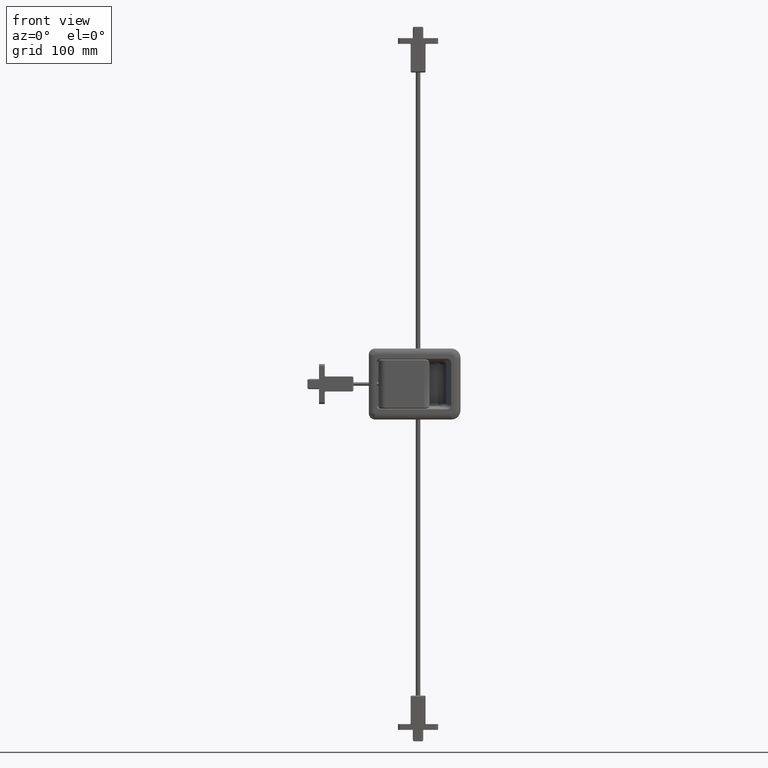
[diagram: clean part render]
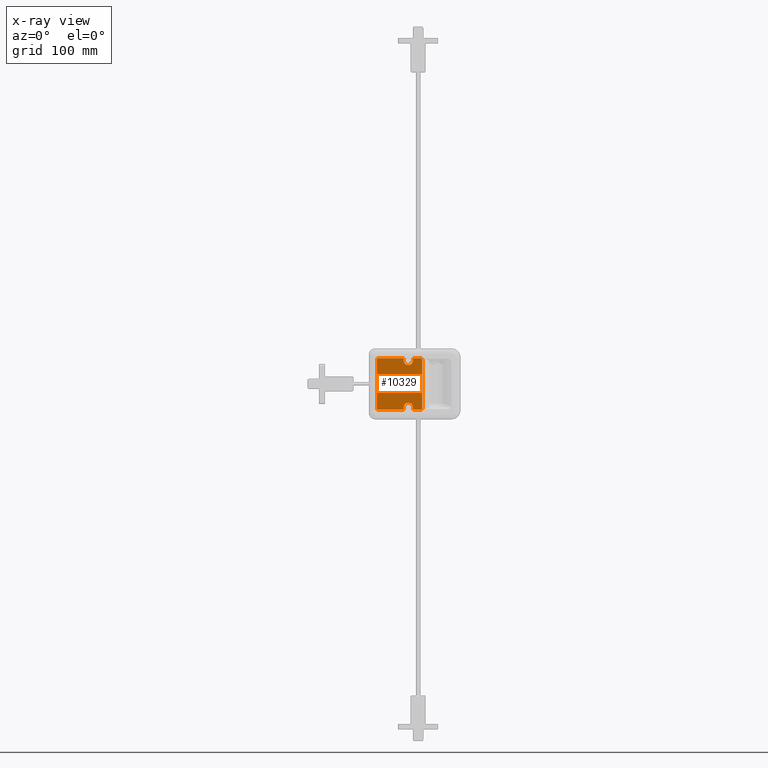
[diagram: x-ray — body ghosted, one internal face saturated and labeled with its STEP entity id]
A machine part, front view, then the same camera in x-ray: the body is ghosted and one INTERNAL B-rep face — a face not visible from any outside direction — is saturated and labeled: STEP entity #10329.
In plain terms, the highlighted face is a freeform B-spline surface patch.
Its self-contained STEP definition (entity closure, byte-faithful):
#9283=CARTESIAN_POINT('',(16.500000000000000,13.750000000000000,20.500000000000000));
#9284=VERTEX_POINT('',#9283);
#9285=CARTESIAN_POINT('',(16.500000000000000,13.750000000000000,22.449999999999999));
#9286=VERTEX_POINT('',#9285);
#9287=CARTESIAN_POINT('',(16.500000000000000,13.750000000000000,20.500000000000000));
#9288=CARTESIAN_POINT('',(16.500000000000000,13.750000000000000,22.449999999999999));
#9289=QUASI_UNIFORM_CURVE('',1,(#9287,#9288),.UNSPECIFIED.,.F.,.U.);
#9290=EDGE_CURVE('',#9284,#9286,#9289,.T.);
#9332=CARTESIAN_POINT('',(24.500000000000000,13.750000000000000,20.500000000000000));
#9333=VERTEX_POINT('',#9332);
#9334=CARTESIAN_POINT('',(20.499981883252950,13.750000000000000,16.500000000041030));
#9335=VERTEX_POINT('',#9334);
#9336=CARTESIAN_POINT('',(24.500000000000000,13.750000000000000,20.500000000000000));
#9337=CARTESIAN_POINT('',(24.500254233075971,13.750000000000011,20.041857580033071));
#9338=CARTESIAN_POINT('',(24.329639797546982,13.749999999999989,19.060145675611160));
#9339=CARTESIAN_POINT('',(23.541291267610241,13.750000000000011,17.743655497388200));
#9340=CARTESIAN_POINT('',(22.200915370813441,13.750000000000011,16.750280157867071));
#9341=CARTESIAN_POINT('',(21.089204154078882,13.749999999999989,16.499164993129469));
#9342=CARTESIAN_POINT('',(20.499981883252950,13.750000000000000,16.500000000041030));
#9343=B_SPLINE_CURVE_WITH_KNOTS('',3,(#9336,#9337,#9338,#9339,#9340,#9341,#9342),.UNSPECIFIED.,.F.,.U.,(4,1,1,1,4),(0.000000881623774,1.374586051367190,2.945560808224033,4.516498488839313,6.283825745046069),.UNSPECIFIED.);
#9344=EDGE_CURVE('',#9333,#9335,#9343,.T.);
#9346=CARTESIAN_POINT('',(20.499981883252950,13.750000000000000,16.500000000041030));
#9347=CARTESIAN_POINT('',(19.910752602650149,13.749999999999989,16.499168180203569));
#9348=CARTESIAN_POINT('',(18.799057106938029,13.750000000000000,16.750287032874141));
#9349=CARTESIAN_POINT('',(17.458677692135929,13.750000000000020,17.743638558698368));
#9350=CARTESIAN_POINT('',(16.670356223996411,13.749999999999959,19.060177457855701));
#9351=CARTESIAN_POINT('',(16.499739817277280,13.750000000000041,20.041837290952301));
#9352=CARTESIAN_POINT('',(16.500000000000000,13.750000000000000,20.500000000000000));
#9353=B_SPLINE_CURVE_WITH_KNOTS('',3,(#9346,#9347,#9348,#9349,#9350,#9351,#9352),.UNSPECIFIED.,.F.,.U.,(4,1,1,1,4),(0.000000977180087,1.767322467654096,3.338255002949419,4.909224635225035,6.283805321258684),.UNSPECIFIED.);
#9354=EDGE_CURVE('',#9335,#9284,#9353,.T.);
#9394=CARTESIAN_POINT('',(24.500000000000000,13.750000000000000,22.449999999999999));
#9395=VERTEX_POINT('',#9394);
#9396=CARTESIAN_POINT('',(24.500000000000000,13.750000000000000,22.449999999999999));
#9397=CARTESIAN_POINT('',(24.500000000000000,13.750000000000000,20.500000000000000));
#9398=QUASI_UNIFORM_CURVE('',1,(#9396,#9397),.UNSPECIFIED.,.F.,.U.);
#9399=EDGE_CURVE('',#9395,#9333,#9398,.T.);
#9422=CARTESIAN_POINT('',(16.500000000000000,13.750000000000000,-20.500000000000000));
#9423=VERTEX_POINT('',#9422);
#9424=CARTESIAN_POINT('',(16.500000000000000,13.750000000000000,-22.449999999999999));
#9425=VERTEX_POINT('',#9424);
#9426=CARTESIAN_POINT('',(16.500000000000000,13.750000000000000,-20.500000000000000));
#9427=CARTESIAN_POINT('',(16.500000000000000,13.750000000000000,-22.449999999999999));
#9428=QUASI_UNIFORM_CURVE('',1,(#9426,#9427),.UNSPECIFIED.,.F.,.U.);
#9429=EDGE_CURVE('',#9423,#9425,#9428,.T.);
#9471=CARTESIAN_POINT('',(20.499981883252950,13.750000000000000,-16.500000000041030));
#9472=VERTEX_POINT('',#9471);
#9473=CARTESIAN_POINT('',(20.499981883252950,13.750000000000000,-16.500000000041030));
#9474=CARTESIAN_POINT('',(19.910752602650149,13.749999999999989,-16.499168180203569));
#9475=CARTESIAN_POINT('',(18.799057106938029,13.750000000000000,-16.750287032874141));
#9476=CARTESIAN_POINT('',(17.458677692135929,13.750000000000020,-17.743638558698368));
#9477=CARTESIAN_POINT('',(16.670356223996411,13.749999999999959,-19.060177457855701));
#9478=CARTESIAN_POINT('',(16.499739817277280,13.750000000000041,-20.041837290952301));
#9479=CARTESIAN_POINT('',(16.500000000000000,13.750000000000000,-20.500000000000000));
#9480=B_SPLINE_CURVE_WITH_KNOTS('',3,(#9473,#9474,#9475,#9476,#9477,#9478,#9479),.UNSPECIFIED.,.F.,.U.,(4,1,1,1,4),(0.000000977180087,1.767322467654096,3.338255002949419,4.909224635225035,6.283805321258684),.UNSPECIFIED.);
#9481=EDGE_CURVE('',#9472,#9423,#9480,.T.);
#9483=CARTESIAN_POINT('',(24.500000000000000,13.750000000000000,-20.500000000000000));
#9484=VERTEX_POINT('',#9483);
#9485=CARTESIAN_POINT('',(24.500000000000000,13.750000000000000,-20.500000000000000));
#9486=CARTESIAN_POINT('',(24.500254233075971,13.750000000000011,-20.041857580033071));
#9487=CARTESIAN_POINT('',(24.329639797546982,13.749999999999989,-19.060145675611160));
#9488=CARTESIAN_POINT('',(23.541291267610241,13.750000000000011,-17.743655497388200));
#9489=CARTESIAN_POINT('',(22.200915370813441,13.750000000000011,-16.750280157867071));
#9490=CARTESIAN_POINT('',(21.089204154078882,13.749999999999989,-16.499164993129469));
#9491=CARTESIAN_POINT('',(20.499981883252950,13.750000000000000,-16.500000000041030));
#9492=B_SPLINE_CURVE_WITH_KNOTS('',3,(#9485,#9486,#9487,#9488,#9489,#9490,#9491),.UNSPECIFIED.,.F.,.U.,(4,1,1,1,4),(0.000000881623774,1.374586051367190,2.945560808224033,4.516498488839313,6.283825745046069),.UNSPECIFIED.);
#9493=EDGE_CURVE('',#9484,#9472,#9492,.T.);
#9533=CARTESIAN_POINT('',(24.500000000000000,13.750000000000000,-22.449999999999999));
#9534=VERTEX_POINT('',#9533);
#9535=CARTESIAN_POINT('',(24.500000000000000,13.750000000000000,-22.449999999999999));
#9536=CARTESIAN_POINT('',(24.500000000000000,13.750000000000000,-20.500000000000000));
#9537=QUASI_UNIFORM_CURVE('',1,(#9535,#9536),.UNSPECIFIED.,.F.,.U.);
#9538=EDGE_CURVE('',#9534,#9484,#9537,.T.);
#9583=CARTESIAN_POINT('',(-7.000000000000091,13.750000000000000,-21.449999999999999));
#9584=VERTEX_POINT('',#9583);
#9590=CARTESIAN_POINT('',(-6.000000000000091,13.750000000000000,-22.449999999999999));
#9591=VERTEX_POINT('',#9590);
#9592=CARTESIAN_POINT('',(-6.000000000000091,13.750000000000000,-22.449999999999999));
#9593=CARTESIAN_POINT('',(-6.229399464662726,13.750000000000020,-22.451254052878291));
#9594=CARTESIAN_POINT('',(-6.620412743983817,13.749999999999989,-22.308996576459261));
#9595=CARTESIAN_POINT('',(-6.941520271925950,13.750000000000020,-21.875456751799391));
#9596=CARTESIAN_POINT('',(-7.000097017114670,13.749999999999970,-21.580862027078791));
#9597=CARTESIAN_POINT('',(-7.000000000000091,13.750000000000000,-21.449999999999999));
#9598=B_SPLINE_CURVE_WITH_KNOTS('',3,(#9592,#9593,#9594,#9595,#9596,#9597),.UNSPECIFIED.,.F.,.U.,(4,1,1,4),(0.000004296705626,0.687565360555057,1.178569503355117,1.571424572238246),.UNSPECIFIED.);
#9599=EDGE_CURVE('',#9591,#9584,#9598,.T.);
#9623=CARTESIAN_POINT('',(-7.000000000000091,13.750000000000000,21.449999999999999));
#9624=VERTEX_POINT('',#9623);
#9625=CARTESIAN_POINT('',(-6.000000000000091,13.750000000000000,22.449999999999999));
#9626=VERTEX_POINT('',#9625);
#9627=CARTESIAN_POINT('',(-7.000000000000091,13.750000000000000,21.449999999999999));
#9628=CARTESIAN_POINT('',(-7.001246187072547,13.750000000000011,21.679367530478430));
#9629=CARTESIAN_POINT('',(-6.859025659911429,13.749999999999989,22.070477456531851));
#9630=CARTESIAN_POINT('',(-6.425438938951119,13.750000000000011,22.391468612505619));
#9631=CARTESIAN_POINT('',(-6.130847421056672,13.750000000000000,22.450107455430629));
#9632=CARTESIAN_POINT('',(-6.000000000000091,13.750000000000000,22.449999999999999));
#9633=B_SPLINE_CURVE_WITH_KNOTS('',3,(#9627,#9628,#9629,#9630,#9631,#9632),.UNSPECIFIED.,.F.,.U.,(4,1,1,4),(0.000004296705638,0.687565360555078,1.178569503355113,1.571424572238247),.UNSPECIFIED.);
#9634=EDGE_CURVE('',#9624,#9626,#9633,.T.);
#9676=CARTESIAN_POINT('',(32.700000000000003,13.750000000000000,-21.449999999999999));
#9677=VERTEX_POINT('',#9676);
#9678=CARTESIAN_POINT('',(31.699999999999999,13.750000000000000,-22.449999999999999));
#9679=VERTEX_POINT('',#9678);
#9680=CARTESIAN_POINT('',(32.700000000000003,13.750000000000000,-21.449999999999999));
#9681=CARTESIAN_POINT('',(32.700105665549543,13.750000000000011,-21.580878177839249));
#9682=CARTESIAN_POINT('',(32.647963122220432,13.749999999999989,-21.842731578614512));
#9683=CARTESIAN_POINT('',(32.444037189371983,13.750000000000011,-22.147662651411171));
#9684=CARTESIAN_POINT('',(32.125161803606773,13.749999999999989,-22.384311697499012));
#9685=CARTESIAN_POINT('',(31.863665445165601,13.749999999999989,-22.450285171044040));
#9686=CARTESIAN_POINT('',(31.699999999999999,13.750000000000000,-22.449999999999999));
#9687=B_SPLINE_CURVE_WITH_KNOTS('',3,(#9680,#9681,#9682,#9683,#9684,#9685,#9686),.UNSPECIFIED.,.F.,.U.,(4,1,1,1,4),(0.000004296705174,0.392859365588518,0.785714434471836,1.080312673519380,1.571424572238253),.UNSPECIFIED.);
#9688=EDGE_CURVE('',#9677,#9679,#9687,.T.);
#9744=CARTESIAN_POINT('',(32.700000000000003,13.750000000000000,21.449999999999999));
#9745=VERTEX_POINT('',#9744);
#9751=CARTESIAN_POINT('',(31.699999999999999,13.750000000000000,22.449999999999999));
#9752=VERTEX_POINT('',#9751);
#9753=CARTESIAN_POINT('',(31.699999999999999,13.750000000000000,22.449999999999999));
#9754=CARTESIAN_POINT('',(31.863573038238101,13.750000000000011,22.450262829990230));
#9755=CARTESIAN_POINT('',(32.223759247392501,13.750000000000000,22.359973069108861));
#9756=CARTESIAN_POINT('',(32.609950072212293,13.750000000000011,21.973773435623698));
#9757=CARTESIAN_POINT('',(32.700284042620247,13.749999999999989,21.613589538380118));
#9758=CARTESIAN_POINT('',(32.700000000000003,13.750000000000000,21.449999999999999));
#9759=B_SPLINE_CURVE_WITH_KNOTS('',3,(#9753,#9754,#9755,#9756,#9757,#9758),.UNSPECIFIED.,.F.,.U.,(4,1,1,4),(0.000004296706004,0.491116195424663,1.080312673519470,1.571424572238248),.UNSPECIFIED.);
#9760=EDGE_CURVE('',#9752,#9745,#9759,.T.);
#10089=CARTESIAN_POINT('',(-7.000000000000091,13.750000000000000,-21.449999999999999));
#10090=CARTESIAN_POINT('',(-7.000000000000091,13.750000000000000,21.449999999999999));
#10091=QUASI_UNIFORM_CURVE('',1,(#10089,#10090),.UNSPECIFIED.,.F.,.U.);
#10092=EDGE_CURVE('',#9584,#9624,#10091,.T.);
#10151=CARTESIAN_POINT('',(32.700000000000003,13.750000000000000,-21.449999999999999));
#10152=CARTESIAN_POINT('',(32.700000000000003,13.750000000000000,21.449999999999999));
#10153=QUASI_UNIFORM_CURVE('',1,(#10151,#10152),.UNSPECIFIED.,.F.,.U.);
#10154=EDGE_CURVE('',#9677,#9745,#10153,.T.);
#10201=CARTESIAN_POINT('',(-6.000000000000091,13.750000000000000,-22.449999999999999));
#10202=CARTESIAN_POINT('',(16.500000000000000,13.750000000000000,-22.449999999999999));
#10203=QUASI_UNIFORM_CURVE('',1,(#10201,#10202),.UNSPECIFIED.,.F.,.U.);
#10204=EDGE_CURVE('',#9591,#9425,#10203,.T.);
#10229=CARTESIAN_POINT('',(24.500000000000000,13.750000000000000,-22.449999999999999));
#10230=CARTESIAN_POINT('',(31.699999999999999,13.750000000000000,-22.449999999999999));
#10231=QUASI_UNIFORM_CURVE('',1,(#10229,#10230),.UNSPECIFIED.,.F.,.U.);
#10232=EDGE_CURVE('',#9534,#9679,#10231,.T.);
#10249=CARTESIAN_POINT('',(16.500000000000000,13.750000000000000,22.449999999999999));
#10250=CARTESIAN_POINT('',(-6.000000000000091,13.750000000000000,22.449999999999999));
#10251=QUASI_UNIFORM_CURVE('',1,(#10249,#10250),.UNSPECIFIED.,.F.,.U.);
#10252=EDGE_CURVE('',#9286,#9626,#10251,.T.);
#10265=CARTESIAN_POINT('',(31.699999999999999,13.750000000000000,22.449999999999999));
#10266=CARTESIAN_POINT('',(24.500000000000000,13.750000000000000,22.449999999999999));
#10267=QUASI_UNIFORM_CURVE('',1,(#10265,#10266),.UNSPECIFIED.,.F.,.U.);
#10268=EDGE_CURVE('',#9752,#9395,#10267,.T.);
#10304=CARTESIAN_POINT('',(-8.983014923053789,13.750000000000000,24.692755755953240));
#10305=CARTESIAN_POINT('',(-8.983014923053789,13.750000000000000,-24.692756157390519));
#10306=CARTESIAN_POINT('',(34.683015987890691,13.750000000000000,24.692755755953240));
#10307=CARTESIAN_POINT('',(34.683015987890691,13.750000000000000,-24.692756157390519));
#10308=B_SPLINE_SURFACE_WITH_KNOTS('',1,1,((#10304,#10306),(#10305,#10307)),.UNSPECIFIED.,.F.,.F.,.U.,(2,2),(2,2),(0.0,49.385511913343763),(0.0,43.666030910944478),.UNSPECIFIED.);
#10309=ORIENTED_EDGE('',*,*,#9399,.F.);
#10310=ORIENTED_EDGE('',*,*,#10268,.F.);
#10311=ORIENTED_EDGE('',*,*,#9760,.T.);
#10312=ORIENTED_EDGE('',*,*,#10154,.F.);
#10313=ORIENTED_EDGE('',*,*,#9688,.T.);
#10314=ORIENTED_EDGE('',*,*,#10232,.F.);
#10315=ORIENTED_EDGE('',*,*,#9538,.T.);
#10316=ORIENTED_EDGE('',*,*,#9493,.T.);
#10317=ORIENTED_EDGE('',*,*,#9481,.T.);
#10318=ORIENTED_EDGE('',*,*,#9429,.T.);
#10319=ORIENTED_EDGE('',*,*,#10204,.F.);
#10320=ORIENTED_EDGE('',*,*,#9599,.T.);
#10321=ORIENTED_EDGE('',*,*,#10092,.T.);
#10322=ORIENTED_EDGE('',*,*,#9634,.T.);
#10323=ORIENTED_EDGE('',*,*,#10252,.F.);
#10324=ORIENTED_EDGE('',*,*,#9290,.F.);
#10325=ORIENTED_EDGE('',*,*,#9354,.F.);
#10326=ORIENTED_EDGE('',*,*,#9344,.F.);
#10327=EDGE_LOOP('',(#10309,#10310,#10311,#10312,#10313,#10314,#10315,#10316,#10317,#10318,#10319,#10320,#10321,#10322,#10323,#10324,#10325,#10326));
#10328=FACE_OUTER_BOUND('',#10327,.T.);
#10329=ADVANCED_FACE('',(#10328),#10308,.F.);